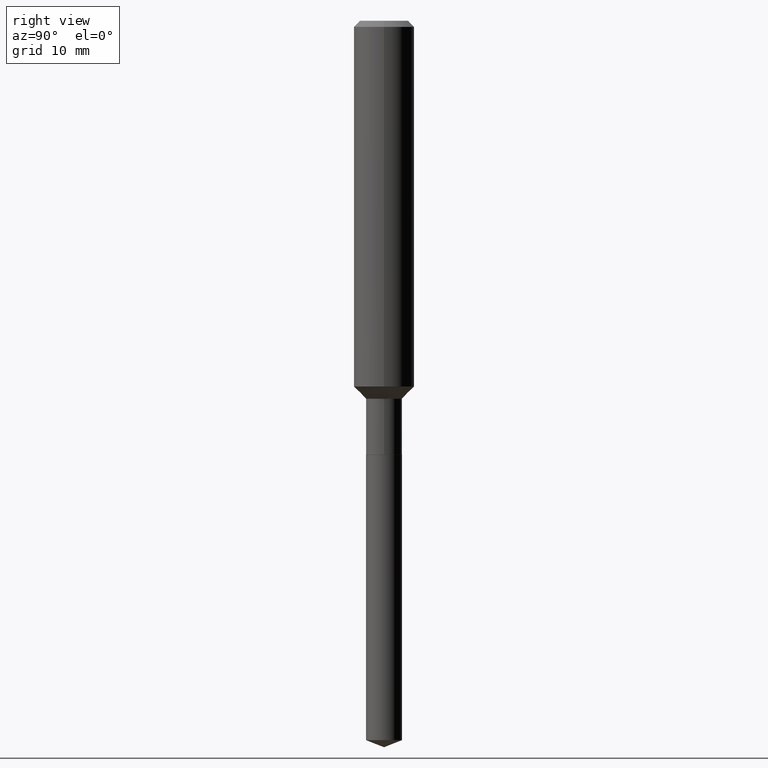
[diagram: clean part render]
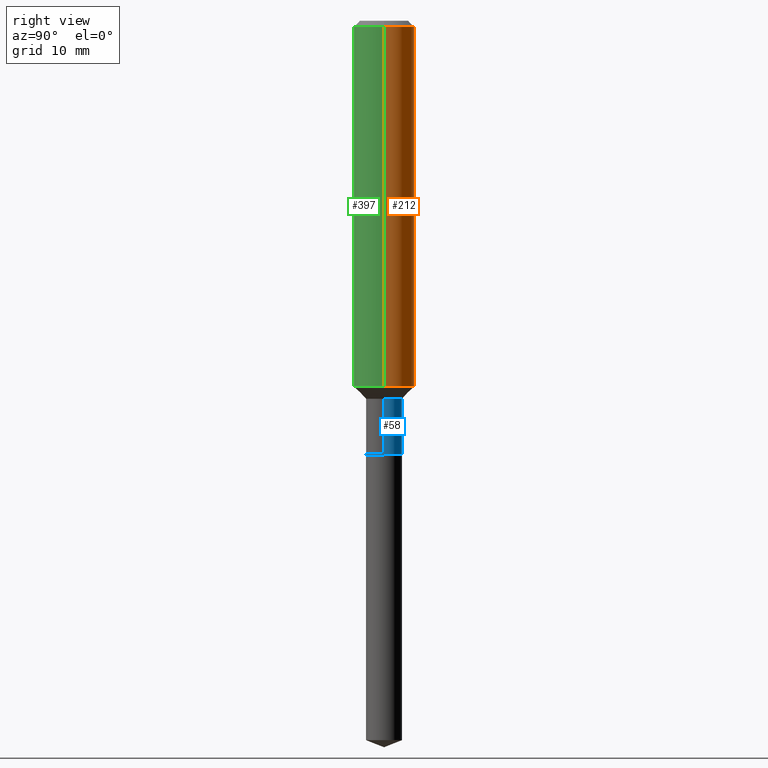
[diagram: same view with three faces highlighted in distinct colors, each labeled with its STEP entity id]
A machine part, right view with three faces highlighted in distinct colors.
Their STEP definitions:

[orange] entity #212 — the highlighted cylindrical surface (edge-blend (fillet) strip) has radius 2.9997 mm, axis along (-0, 0, 1).
#16 = DIRECTION ( 'NONE',  ( -2.445468806185136877E-29, 3.491481338843145188E-15, 1.000000000000000000 ) ) ;
#22 = VECTOR ( 'NONE', #85, 39.37007874015748143 ) ;
#38 = VERTEX_POINT ( 'NONE', #411 ) ;
#40 = DIRECTION ( 'NONE',  ( 1.000000000000000000, -6.982962677686266711E-15, 4.876176775795936353E-29 ) ) ;
#71 = ORIENTED_EDGE ( 'NONE', *, *, #238, .T. ) ;
#77 = ORIENTED_EDGE ( 'NONE', *, *, #322, .F. ) ;
#78 = VECTOR ( 'NONE', #16, 39.37007874015748143 ) ;
#85 = DIRECTION ( 'NONE',  ( -2.445468806185136877E-29, 3.491481338843145188E-15, 1.000000000000000000 ) ) ;
#115 = VERTEX_POINT ( 'NONE', #315 ) ;
#118 = AXIS2_PLACEMENT_3D ( 'NONE', #436, #377, #40 ) ;
#126 = ORIENTED_EDGE ( 'NONE', *, *, #146, .F. ) ;
#129 = CARTESIAN_POINT ( 'NONE',  ( 0.1181000000000000799, -8.246878922347486570E-16, 5.758764772215004644E-30 ) ) ;
#139 = DIRECTION ( 'NONE',  ( 1.000000000000000000, -6.982962677686266711E-15, 0.000000000000000000 ) ) ;
#146 = EDGE_CURVE ( 'NONE', #115, #215, #429, .T. ) ;
#165 = FACE_OUTER_BOUND ( 'NONE', #363, .T. ) ;
#167 = ORIENTED_EDGE ( 'NONE', *, *, #294, .T. ) ;
#177 = AXIS2_PLACEMENT_3D ( 'NONE', #284, #469, #139 ) ;
#190 = CARTESIAN_POINT ( 'NONE',  ( 0.1180999999999999966, -9.071566814582237199E-16, -0.02362000000000014435 ) ) ;
#191 = VERTEX_POINT ( 'NONE', #468 ) ;
#196 = CIRCLE ( 'NONE', #177, 0.1180999999999999966 ) ;
#208 = DIRECTION ( 'NONE',  ( 1.000000000000000000, -6.982962677686270655E-15, 0.000000000000000000 ) ) ;
#212 = ADVANCED_FACE ( 'NONE', ( #165 ), #318, .T. ) ;
#215 = VERTEX_POINT ( 'NONE', #190 ) ;
#238 = EDGE_CURVE ( 'NONE', #191, #38, #281, .T. ) ;
#269 = AXIS2_PLACEMENT_3D ( 'NONE', #360, #325, #208 ) ;
#281 = LINE ( 'NONE', #403, #78 ) ;
#284 = CARTESIAN_POINT ( 'NONE',  ( 5.776197320209328408E-31, -8.246878922347560526E-17, -0.02362000000000014435 ) ) ;
#294 = EDGE_CURVE ( 'NONE', #115, #191, #421, .T. ) ;
#315 = CARTESIAN_POINT ( 'NONE',  ( 0.1181000000000001632, -5.807380910897802542E-15, -1.427099999999999813 ) ) ;
#318 = CYLINDRICAL_SURFACE ( 'NONE', #118, 0.1181000000000000799 ) ;
#322 = EDGE_CURVE ( 'NONE', #215, #38, #196, .T. ) ;
#325 = DIRECTION ( 'NONE',  ( -2.445468806185136597E-29, 3.491481338843145583E-15, 1.000000000000000000 ) ) ;
#360 = CARTESIAN_POINT ( 'NONE',  ( 3.489928533306808296E-29, -4.982693018663052701E-15, -1.427099999999999813 ) ) ;
#363 = EDGE_LOOP ( 'NONE', ( #167, #71, #77, #126 ) ) ;
#377 = DIRECTION ( 'NONE',  ( -2.445468806185136597E-29, 3.491481338843145583E-15, 1.000000000000000000 ) ) ;
#403 = CARTESIAN_POINT ( 'NONE',  ( -0.1181000000000000799, 8.391509709326788873E-16, -5.809262341591047988E-30 ) ) ;
#411 = CARTESIAN_POINT ( 'NONE',  ( -0.1180999999999999966, -1.693429933010584502E-15, -0.02362000000000014435 ) ) ;
#421 = CIRCLE ( 'NONE', #269, 0.1181000000000001632 ) ;
#429 = LINE ( 'NONE', #129, #22 ) ;
#436 = CARTESIAN_POINT ( 'NONE',  ( 0.000000000000000000, 0.000000000000000000, 0.000000000000000000 ) ) ;
#468 = CARTESIAN_POINT ( 'NONE',  ( -0.1181000000000001632, -4.143542047730373715E-15, -1.427099999999999813 ) ) ;
#469 = DIRECTION ( 'NONE',  ( -2.445468806185136597E-29, 3.491481338843145583E-15, 1.000000000000000000 ) ) ;

[blue] entity #58 — the highlighted cylindrical surface (edge-blend (fillet) strip) has radius 1.7856 mm, axis along (-0, 0, 1).
#4 = DIRECTION ( 'NONE',  ( 1.000000000000000000, -6.982962677686266711E-15, 4.876176775795935232E-29 ) ) ;
#13 = LINE ( 'NONE', #464, #308 ) ;
#29 = DIRECTION ( 'NONE',  ( -2.445468806185136597E-29, 3.491481338843145583E-15, 1.000000000000000000 ) ) ;
#43 = EDGE_CURVE ( 'NONE', #142, #373, #158, .T. ) ;
#58 = ADVANCED_FACE ( 'NONE', ( #109 ), #381, .T. ) ;
#65 = ORIENTED_EDGE ( 'NONE', *, *, #451, .T. ) ;
#81 = CARTESIAN_POINT ( 'NONE',  ( 0.07030000000000000138, -6.399885294099483730E-15, -1.692399999999999904 ) ) ;
#89 = CARTESIAN_POINT ( 'NONE',  ( 0.000000000000000000, 0.000000000000000000, 0.000000000000000000 ) ) ;
#100 = CARTESIAN_POINT ( 'NONE',  ( 0.07029999999999997362, -5.640488102901099701E-15, -1.474899999999999878 ) ) ;
#109 = FACE_OUTER_BOUND ( 'NONE', #113, .T. ) ;
#113 = EDGE_LOOP ( 'NONE', ( #278, #65, #133, #184 ) ) ;
#127 = AXIS2_PLACEMENT_3D ( 'NONE', #368, #29, #179 ) ;
#133 = ORIENTED_EDGE ( 'NONE', *, *, #401, .F. ) ;
#142 = VERTEX_POINT ( 'NONE', #81 ) ;
#144 = DIRECTION ( 'NONE',  ( 1.000000000000000000, -6.982962677686268288E-15, 0.000000000000000000 ) ) ;
#158 = CIRCLE ( 'NONE', #127, 0.07030000000000000138 ) ;
#179 = DIRECTION ( 'NONE',  ( 1.000000000000000000, -6.982962677686265133E-15, 0.000000000000000000 ) ) ;
#184 = ORIENTED_EDGE ( 'NONE', *, *, #199, .F. ) ;
#185 = AXIS2_PLACEMENT_3D ( 'NONE', #489, #484, #144 ) ;
#199 = EDGE_CURVE ( 'NONE', #142, #418, #13, .T. ) ;
#217 = LINE ( 'NONE', #228, #387 ) ;
#222 = DIRECTION ( 'NONE',  ( -2.445468806185136877E-29, 3.491481338843145188E-15, 1.000000000000000000 ) ) ;
#228 = CARTESIAN_POINT ( 'NONE',  ( -0.07029999999999998750, 4.995115432393503418E-16, -3.458011368449198169E-30 ) ) ;
#256 = AXIS2_PLACEMENT_3D ( 'NONE', #89, #277, #4 ) ;
#277 = DIRECTION ( 'NONE',  ( -2.445468806185136597E-29, 3.491481338843145583E-15, 1.000000000000000000 ) ) ;
#278 = ORIENTED_EDGE ( 'NONE', *, *, #43, .T. ) ;
#308 = VECTOR ( 'NONE', #391, 39.37007874015748143 ) ;
#326 = CARTESIAN_POINT ( 'NONE',  ( -0.07030000000000000138, -5.029772879019596525E-15, -1.692399999999999904 ) ) ;
#368 = CARTESIAN_POINT ( 'NONE',  ( 4.138711407587725556E-29, -5.908983017858139571E-15, -1.692399999999999904 ) ) ;
#370 = CARTESIAN_POINT ( 'NONE',  ( -0.07029999999999997362, -5.029772879019596525E-15, -1.474899999999999878 ) ) ;
#373 = VERTEX_POINT ( 'NONE', #326 ) ;
#381 = CYLINDRICAL_SURFACE ( 'NONE', #256, 0.07029999999999998750 ) ;
#387 = VECTOR ( 'NONE', #222, 39.37007874015748143 ) ;
#391 = DIRECTION ( 'NONE',  ( -2.445468806185136877E-29, 3.491481338843145188E-15, 1.000000000000000000 ) ) ;
#401 = EDGE_CURVE ( 'NONE', #418, #487, #467, .T. ) ;
#418 = VERTEX_POINT ( 'NONE', #100 ) ;
#451 = EDGE_CURVE ( 'NONE', #373, #487, #217, .T. ) ;
#464 = CARTESIAN_POINT ( 'NONE',  ( 0.07029999999999998750, -4.909022762413444543E-16, 3.427952273384541736E-30 ) ) ;
#467 = CIRCLE ( 'NONE', #185, 0.07029999999999997362 ) ;
#484 = DIRECTION ( 'NONE',  ( -2.445468806185136597E-29, 3.491481338843145583E-15, 1.000000000000000000 ) ) ;
#487 = VERTEX_POINT ( 'NONE', #370 ) ;
#489 = CARTESIAN_POINT ( 'NONE',  ( 3.606821942242457808E-29, -5.149585826659755542E-15, -1.474899999999999878 ) ) ;

[green] entity #397 — the highlighted cylindrical surface (edge-blend (fillet) strip) has radius 2.9997 mm, axis along (-0, 0, 1).
#16 = DIRECTION ( 'NONE',  ( -2.445468806185136877E-29, 3.491481338843145188E-15, 1.000000000000000000 ) ) ;
#22 = VECTOR ( 'NONE', #85, 39.37007874015748143 ) ;
#38 = VERTEX_POINT ( 'NONE', #411 ) ;
#46 = CIRCLE ( 'NONE', #106, 0.1181000000000001632 ) ;
#47 = AXIS2_PLACEMENT_3D ( 'NONE', #405, #72, #147 ) ;
#72 = DIRECTION ( 'NONE',  ( -2.445468806185136597E-29, 3.491481338843145583E-15, 1.000000000000000000 ) ) ;
#78 = VECTOR ( 'NONE', #16, 39.37007874015748143 ) ;
#85 = DIRECTION ( 'NONE',  ( -2.445468806185136877E-29, 3.491481338843145188E-15, 1.000000000000000000 ) ) ;
#106 = AXIS2_PLACEMENT_3D ( 'NONE', #442, #130, #254 ) ;
#107 = DIRECTION ( 'NONE',  ( -2.445468806185136597E-29, 3.491481338843145583E-15, 1.000000000000000000 ) ) ;
#110 = EDGE_LOOP ( 'NONE', ( #366, #265, #490, #305 ) ) ;
#115 = VERTEX_POINT ( 'NONE', #315 ) ;
#129 = CARTESIAN_POINT ( 'NONE',  ( 0.1181000000000000799, -8.246878922347486570E-16, 5.758764772215004644E-30 ) ) ;
#130 = DIRECTION ( 'NONE',  ( -2.445468806185136597E-29, 3.491481338843145583E-15, 1.000000000000000000 ) ) ;
#132 = FACE_OUTER_BOUND ( 'NONE', #110, .T. ) ;
#146 = EDGE_CURVE ( 'NONE', #115, #215, #429, .T. ) ;
#147 = DIRECTION ( 'NONE',  ( 1.000000000000000000, -6.982962677686266711E-15, 4.876176775795936353E-29 ) ) ;
#190 = CARTESIAN_POINT ( 'NONE',  ( 0.1180999999999999966, -9.071566814582237199E-16, -0.02362000000000014435 ) ) ;
#191 = VERTEX_POINT ( 'NONE', #468 ) ;
#214 = CARTESIAN_POINT ( 'NONE',  ( 5.776197320209328408E-31, -8.246878922347560526E-17, -0.02362000000000014435 ) ) ;
#215 = VERTEX_POINT ( 'NONE', #190 ) ;
#238 = EDGE_CURVE ( 'NONE', #191, #38, #281, .T. ) ;
#254 = DIRECTION ( 'NONE',  ( 1.000000000000000000, -6.982962677686270655E-15, 0.000000000000000000 ) ) ;
#265 = ORIENTED_EDGE ( 'NONE', *, *, #356, .T. ) ;
#281 = LINE ( 'NONE', #403, #78 ) ;
#305 = ORIENTED_EDGE ( 'NONE', *, *, #477, .F. ) ;
#315 = CARTESIAN_POINT ( 'NONE',  ( 0.1181000000000001632, -5.807380910897802542E-15, -1.427099999999999813 ) ) ;
#356 = EDGE_CURVE ( 'NONE', #191, #115, #46, .T. ) ;
#361 = DIRECTION ( 'NONE',  ( 1.000000000000000000, -6.982962677686266711E-15, 0.000000000000000000 ) ) ;
#366 = ORIENTED_EDGE ( 'NONE', *, *, #238, .F. ) ;
#374 = CIRCLE ( 'NONE', #399, 0.1180999999999999966 ) ;
#397 = ADVANCED_FACE ( 'NONE', ( #132 ), #416, .T. ) ;
#399 = AXIS2_PLACEMENT_3D ( 'NONE', #214, #107, #361 ) ;
#403 = CARTESIAN_POINT ( 'NONE',  ( -0.1181000000000000799, 8.391509709326788873E-16, -5.809262341591047988E-30 ) ) ;
#405 = CARTESIAN_POINT ( 'NONE',  ( 0.000000000000000000, 0.000000000000000000, 0.000000000000000000 ) ) ;
#411 = CARTESIAN_POINT ( 'NONE',  ( -0.1180999999999999966, -1.693429933010584502E-15, -0.02362000000000014435 ) ) ;
#416 = CYLINDRICAL_SURFACE ( 'NONE', #47, 0.1181000000000000799 ) ;
#429 = LINE ( 'NONE', #129, #22 ) ;
#442 = CARTESIAN_POINT ( 'NONE',  ( 3.489928533306808296E-29, -4.982693018663052701E-15, -1.427099999999999813 ) ) ;
#468 = CARTESIAN_POINT ( 'NONE',  ( -0.1181000000000001632, -4.143542047730373715E-15, -1.427099999999999813 ) ) ;
#477 = EDGE_CURVE ( 'NONE', #38, #215, #374, .T. ) ;
#490 = ORIENTED_EDGE ( 'NONE', *, *, #146, .T. ) ;